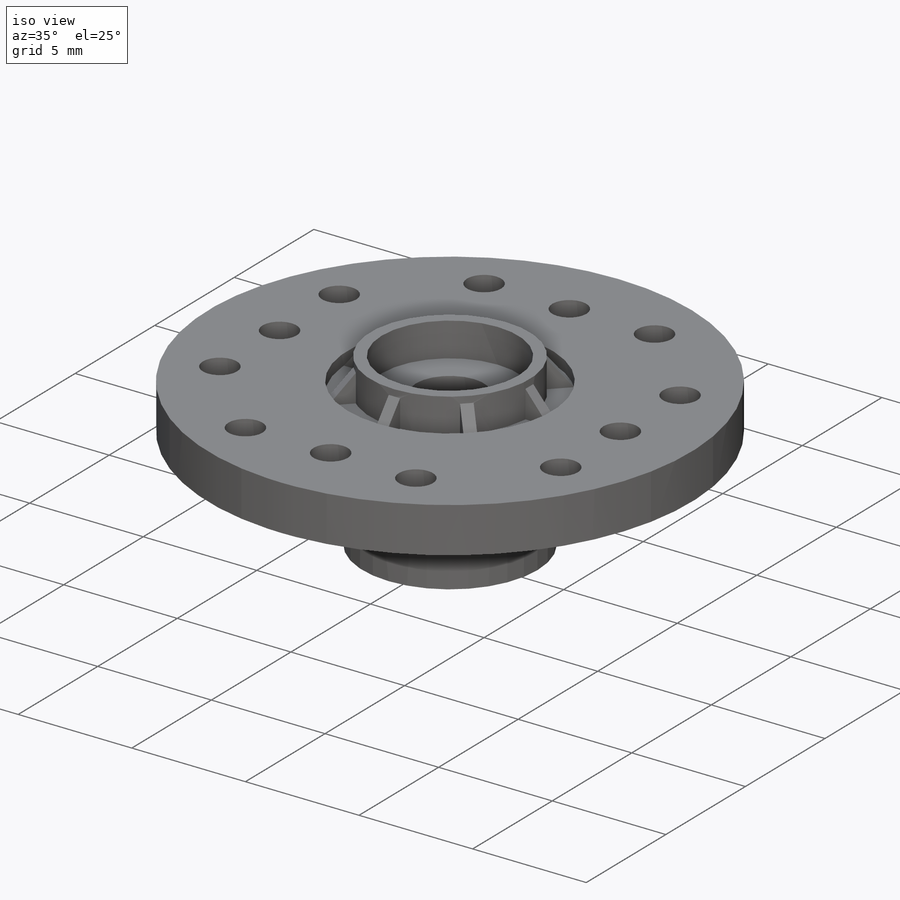
[diagram: iso view]
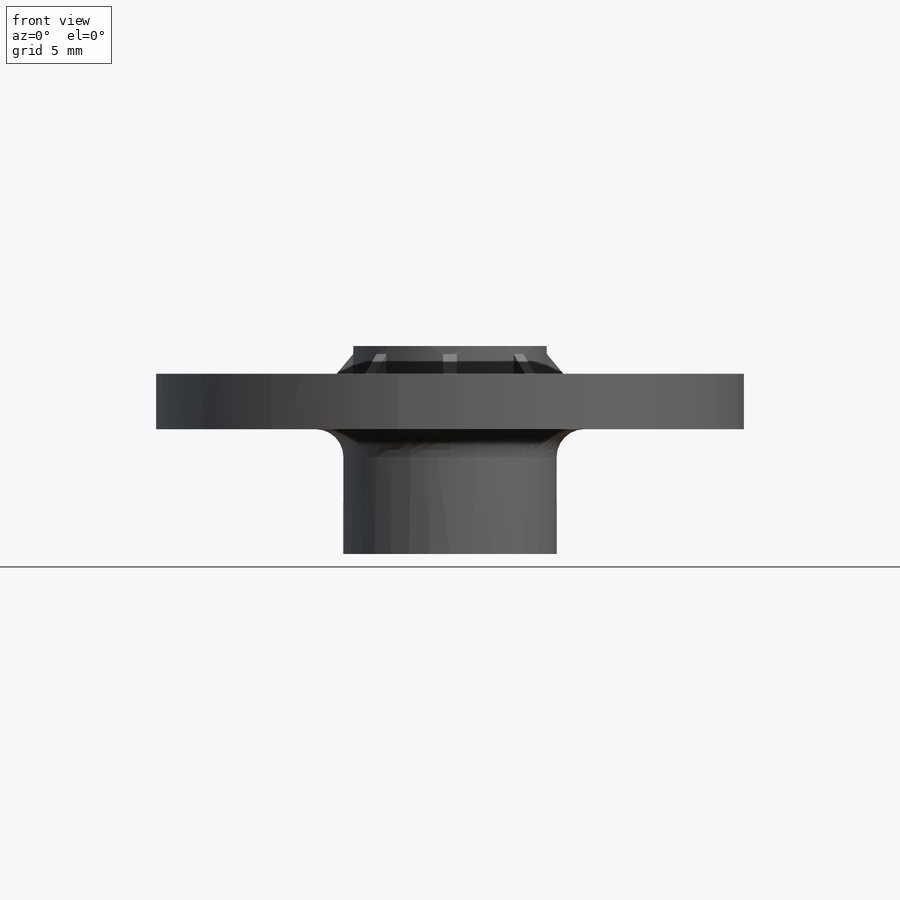
[diagram: front view]
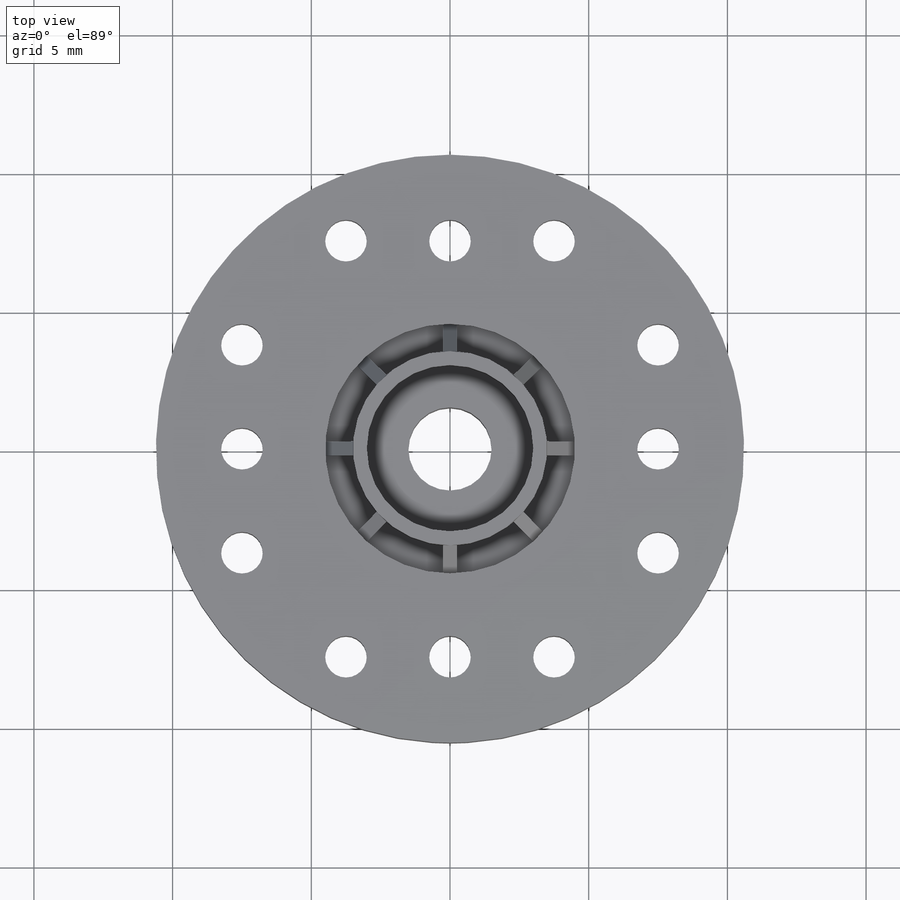
[diagram: top view]
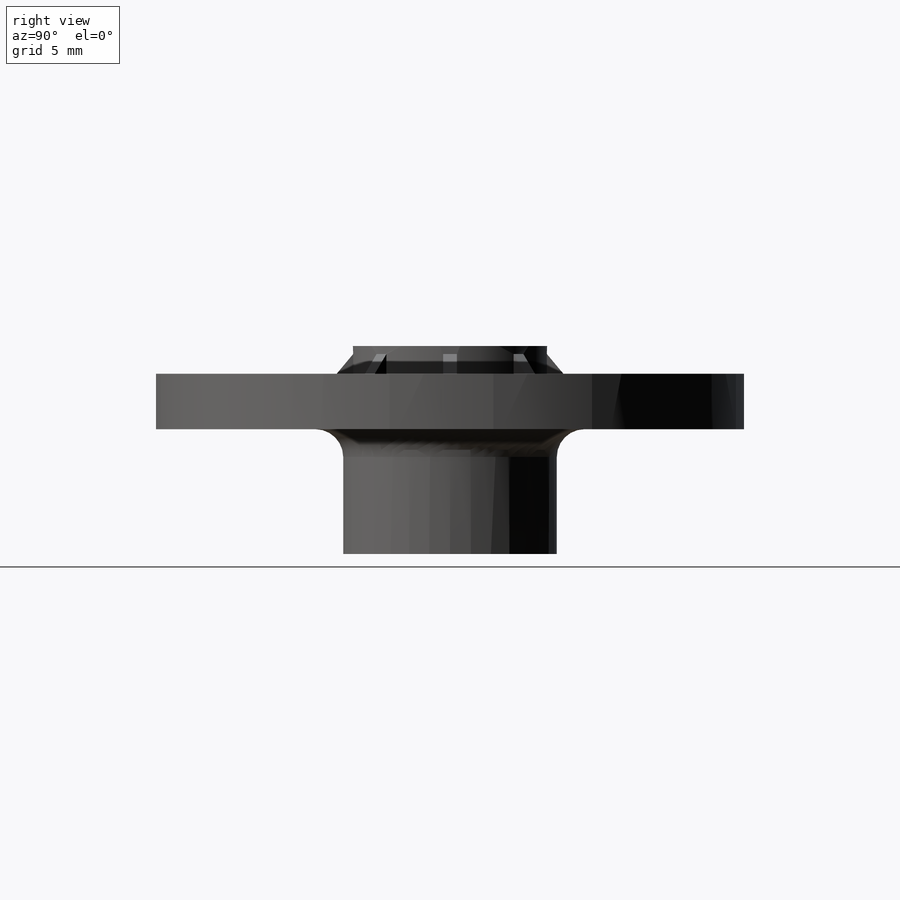
[diagram: right view]
SOLIDWORKS PART (.sldprt)
format: sldprt  version: not decoded by parser v0  size: 266,752 bytes
history: native  units: mm
features: sketch x8, extrude x4, cut_extrude x4, pattern_circular x2, material x1, fillet x1 (+12 scaffold rows collapsed)
feature tree (32):
  scaffold x12  (default folders/planes/origin — collapsed)
  material  "Material <not specified>"
  sketch  "Sketch1"  dims[D1=21.2mm]
  extrude  "Boss-Extrude1"  Depth=2mm
  sketch  "Sketch2"  dims[D1=1.5mm D2=7.5mm D3=7.5mm]
  cut_extrude  "Cut-Extrude2"  [1 undecoded]
  pattern_circular  "CirPattern1"  Count=4 Angle=360deg
  sketch  "Sketch3"  dims[D1=7.7mm]
  extrude  "Boss-Extrude2"  Depth=4.5mm
  sketch  "Sketch4"  dims[D1=6.0mm]
  cut_extrude  "Cut-Extrude3"  Depth=3.5mm
  sketch  "Sketch5"  dims[D1=3.0mm]
  cut_extrude  "Cut-Extrude4"  [1 undecoded]
  fillet  "Fillet1"  Radius=1mm
  sketch  "Sketch6"  dims[D1=9.0mm]
  cut_extrude  "Cut-Extrude5"  Depth=0.5mm
  sketch  "Sketch7"  dims[D1=7.0mm D2=0.5mm]
  extrude  "Boss-Extrude3"  Depth=1.5mm
  sketch  "Sketch8"  dims[D1=0.25mm]
  extrude  "Boss-Extrude4"  Depth=0.5mm
  pattern_circular  "CirPattern2"  Count=8 Angle=360deg
decode coverage: 17 of 19 modeling features carry decoded parameters
note: 2 parameter values undecoded
note: suppression state not decoded; provenance and decode notes live in map.json
